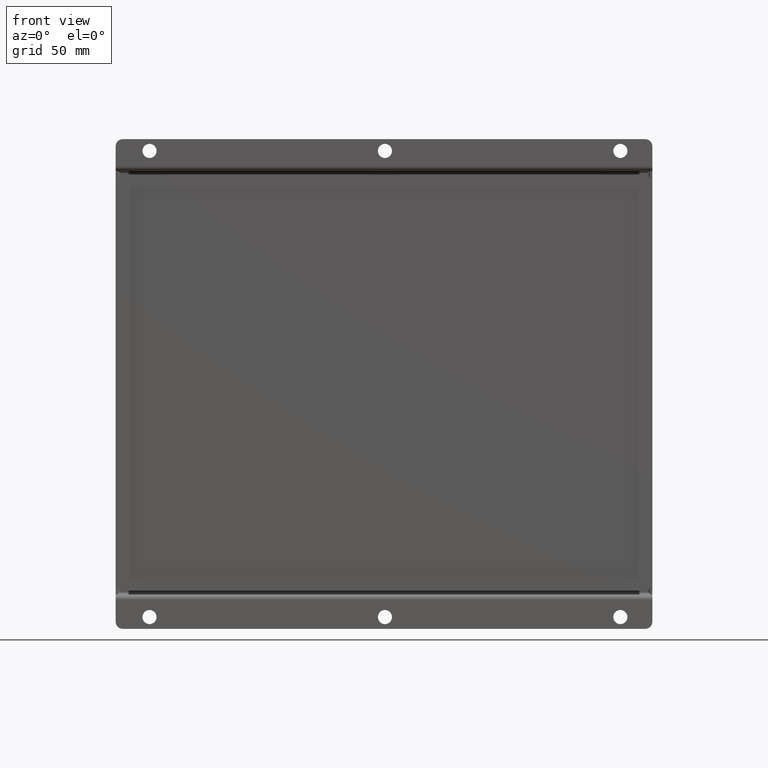
[diagram: clean part render]
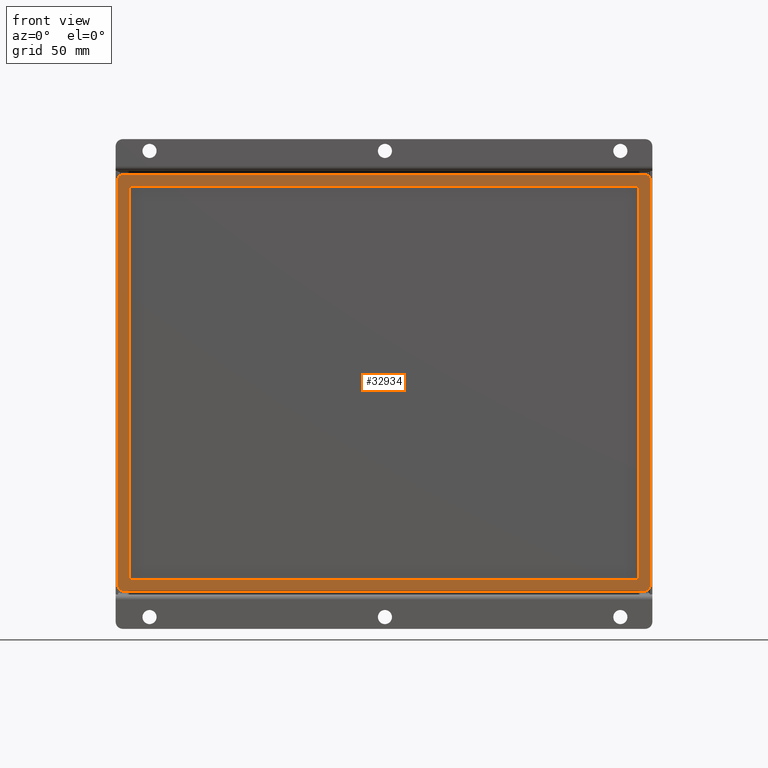
[diagram: same view with one face highlighted and labeled with its STEP entity id]
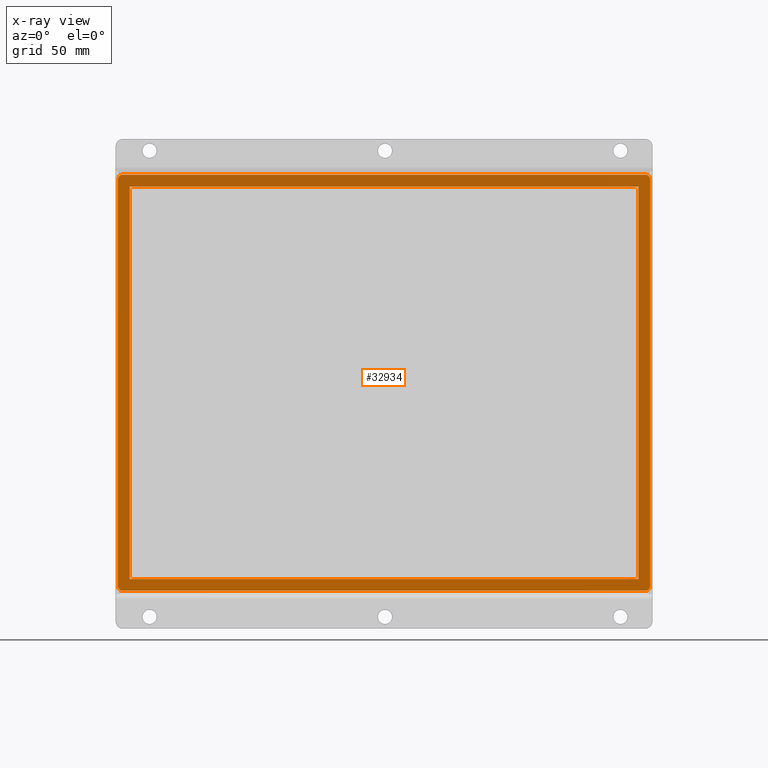
[diagram: x-ray of the same camera — body ghosted, the highlighted face saturated]
A machine part, front view. The second image highlights one B-rep face of the part: STEP entity #32934.
The next image is the same camera in x-ray: the body ghosted, the highlighted face saturated — about 0% of this face is hidden behind the body in this view.
In plain terms, the highlighted planar face has unit normal (-0, -1, -0).
Its self-contained STEP definition (entity closure, byte-faithful):
#2452=FACE_BOUND('',#4647,.T.);
#2780=FACE_OUTER_BOUND('',#4646,.T.);
#4646=EDGE_LOOP('',(#22514,#22515,#22516,#22517,#22518,#22519,#22520,#22521));
#4647=EDGE_LOOP('',(#22522,#22523,#22524,#22525));
#6860=LINE('',#47664,#10081);
#6861=LINE('',#47668,#10082);
#6862=LINE('',#47672,#10083);
#6863=LINE('',#47675,#10084);
#6864=LINE('',#47678,#10085);
#6865=LINE('',#47680,#10086);
#6866=LINE('',#47682,#10087);
#6867=LINE('',#47683,#10088);
#10081=VECTOR('',#38433,10.);
#10082=VECTOR('',#38436,10.);
#10083=VECTOR('',#38439,10.);
#10084=VECTOR('',#38442,10.);
#10085=VECTOR('',#38443,10.);
#10086=VECTOR('',#38444,10.);
#10087=VECTOR('',#38445,10.);
#10088=VECTOR('',#38446,10.);
#13225=CIRCLE('',#35275,2.);
#13226=CIRCLE('',#35277,2.);
#13227=CIRCLE('',#35278,2.);
#13228=CIRCLE('',#35279,2.);
#14520=VERTEX_POINT('',#47657);
#14521=VERTEX_POINT('',#47658);
#14522=VERTEX_POINT('',#47663);
#14523=VERTEX_POINT('',#47665);
#14524=VERTEX_POINT('',#47667);
#14525=VERTEX_POINT('',#47669);
#14526=VERTEX_POINT('',#47671);
#14527=VERTEX_POINT('',#47673);
#14528=VERTEX_POINT('',#47676);
#14529=VERTEX_POINT('',#47677);
#14530=VERTEX_POINT('',#47679);
#14531=VERTEX_POINT('',#47681);
#17703=EDGE_CURVE('',#14520,#14521,#13225,.T.);
#17706=EDGE_CURVE('',#14520,#14522,#6860,.T.);
#17707=EDGE_CURVE('',#14523,#14522,#13226,.T.);
#17708=EDGE_CURVE('',#14523,#14524,#6861,.T.);
#17709=EDGE_CURVE('',#14525,#14524,#13227,.T.);
#17710=EDGE_CURVE('',#14525,#14526,#6862,.T.);
#17711=EDGE_CURVE('',#14527,#14526,#13228,.T.);
#17712=EDGE_CURVE('',#14527,#14521,#6863,.T.);
#17713=EDGE_CURVE('',#14528,#14529,#6864,.T.);
#17714=EDGE_CURVE('',#14529,#14530,#6865,.T.);
#17715=EDGE_CURVE('',#14530,#14531,#6866,.T.);
#17716=EDGE_CURVE('',#14531,#14528,#6867,.T.);
#22514=ORIENTED_EDGE('',*,*,#17703,.F.);
#22515=ORIENTED_EDGE('',*,*,#17706,.T.);
#22516=ORIENTED_EDGE('',*,*,#17707,.F.);
#22517=ORIENTED_EDGE('',*,*,#17708,.T.);
#22518=ORIENTED_EDGE('',*,*,#17709,.F.);
#22519=ORIENTED_EDGE('',*,*,#17710,.T.);
#22520=ORIENTED_EDGE('',*,*,#17711,.F.);
#22521=ORIENTED_EDGE('',*,*,#17712,.T.);
#22522=ORIENTED_EDGE('',*,*,#17713,.T.);
#22523=ORIENTED_EDGE('',*,*,#17714,.T.);
#22524=ORIENTED_EDGE('',*,*,#17715,.T.);
#22525=ORIENTED_EDGE('',*,*,#17716,.T.);
#31766=PLANE('',#35276);
#32934=ADVANCED_FACE('',(#2780,#2452),#31766,.T.);
#35275=AXIS2_PLACEMENT_3D('',#47659,#38427,#38428);
#35276=AXIS2_PLACEMENT_3D('',#47662,#38431,#38432);
#35277=AXIS2_PLACEMENT_3D('',#47666,#38434,#38435);
#35278=AXIS2_PLACEMENT_3D('',#47670,#38437,#38438);
#35279=AXIS2_PLACEMENT_3D('',#47674,#38440,#38441);
#38427=DIRECTION('center_axis',(0.,0.,-1.));
#38428=DIRECTION('ref_axis',(-0.707106781186548,0.707106781186548,0.));
#38431=DIRECTION('center_axis',(0.,0.,1.));
#38432=DIRECTION('ref_axis',(1.,0.,0.));
#38433=DIRECTION('',(0.,-1.,0.));
#38434=DIRECTION('center_axis',(0.,0.,-1.));
#38435=DIRECTION('ref_axis',(-0.707106781186548,-0.707106781186548,0.));
#38436=DIRECTION('',(1.,0.,0.));
#38437=DIRECTION('center_axis',(0.,0.,-1.));
#38438=DIRECTION('ref_axis',(0.707106781186548,-0.707106781186548,0.));
#38439=DIRECTION('',(-1.00472671911779E-16,1.,0.));
#38440=DIRECTION('center_axis',(0.,0.,-1.));
#38441=DIRECTION('ref_axis',(0.707106781186548,0.707106781186548,0.));
#38442=DIRECTION('',(-1.,0.,0.));
#38443=DIRECTION('',(1.,7.85998601504536E-17,0.));
#38444=DIRECTION('',(3.19488640179901E-16,-1.,0.));
#38445=DIRECTION('',(-1.,-1.57199720300907E-16,0.));
#38446=DIRECTION('',(-2.12992426786601E-16,1.,0.));
#47657=CARTESIAN_POINT('',(-113.,86.4,10.2));
#47658=CARTESIAN_POINT('',(-111.,88.4,10.2));
#47659=CARTESIAN_POINT('Origin',(-111.,86.4,10.2));
#47662=CARTESIAN_POINT('Origin',(110.5,0.,10.2));
#47663=CARTESIAN_POINT('',(-113.,-86.4000000000001,10.2));
#47664=CARTESIAN_POINT('',(-113.,88.4,10.2));
#47665=CARTESIAN_POINT('',(-111.,-88.4,10.2));
#47666=CARTESIAN_POINT('Origin',(-111.,-86.4000000000001,10.2));
#47667=CARTESIAN_POINT('',(111.,-88.4,10.2));
#47668=CARTESIAN_POINT('',(-113.,-88.4,10.2));
#47669=CARTESIAN_POINT('',(113.,-86.4000000000001,10.2));
#47670=CARTESIAN_POINT('Origin',(111.,-86.4000000000001,10.2));
#47671=CARTESIAN_POINT('',(113.,86.4000000000001,10.2));
#47672=CARTESIAN_POINT('',(113.,-88.4,10.2));
#47673=CARTESIAN_POINT('',(111.,88.4,10.2));
#47674=CARTESIAN_POINT('Origin',(111.,86.4000000000001,10.2));
#47675=CARTESIAN_POINT('',(113.,88.4,10.2));
#47676=CARTESIAN_POINT('',(-108.,83.3999999999999,10.2));
#47677=CARTESIAN_POINT('',(108.,83.4,10.2));
#47678=CARTESIAN_POINT('',(-113.,83.4,10.2));
#47679=CARTESIAN_POINT('',(108.,-83.4,10.2));
#47680=CARTESIAN_POINT('',(108.,83.4,10.2));
#47681=CARTESIAN_POINT('',(-108.,-83.4,10.2));
#47682=CARTESIAN_POINT('',(113.,-83.4,10.2));
#47683=CARTESIAN_POINT('',(-108.,-83.4,10.2));